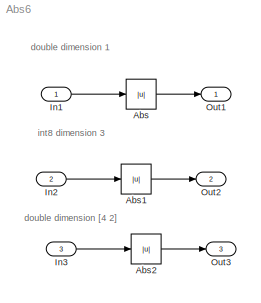
MODEL Abs6
KIND model
BLOCK [Abs] Abs
  SID = 4
  SaturateOnIntegerOverflow = off
BLOCK [Abs] Abs1
  SID = 5
  SaturateOnIntegerOverflow = off
BLOCK [Abs] Abs2
  SID = 6
  SaturateOnIntegerOverflow = off
BLOCK [Inport] In1
  IconDisplay = Port number
  OutDataTypeStr = double
  SID = 1
BLOCK [Inport] In2
  IconDisplay = Port number
  OutDataTypeStr = int8
  Port = 2
  PortDimensions = [3]
  SID = 2
BLOCK [Inport] In3
  IconDisplay = Port number
  Port = 3
  PortDimensions = [4 2]
  SID = 3
BLOCK [Outport] Out1
  IconDisplay = Port number
  SID = 7
BLOCK [Outport] Out2
  IconDisplay = Port number
  Port = 2
  SID = 8
BLOCK [Outport] Out3
  IconDisplay = Port number
  Port = 3
  SID = 9
ANNOTATION (root): double dimension 1
ANNOTATION (root): double dimension [4 2]
ANNOTATION (root): int8 dimension 3
LINE Abs1:1 -> Out2:1
LINE Abs2:1 -> Out3:1
LINE Abs:1 -> Out1:1
LINE In1:1 -> Abs:1
LINE In2:1 -> Abs1:1
LINE In3:1 -> Abs2:1
